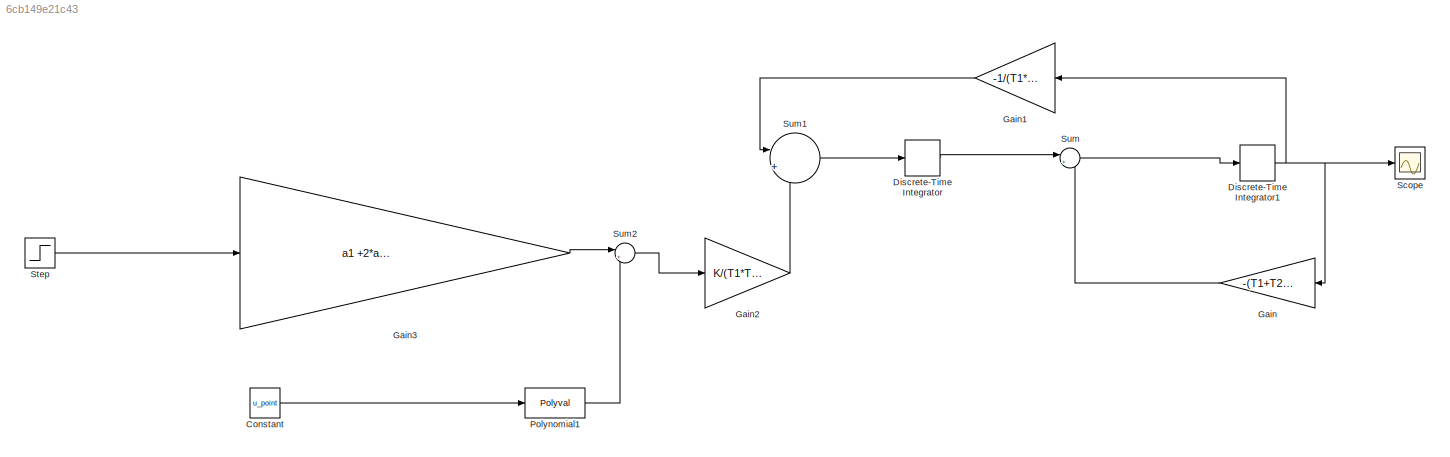
MODEL slx_6cb149e21c43
KIND model
CONFIG AbsTol = auto
CONFIG EnableMultiTasking = off
CONFIG FixedStep = auto
CONFIG MaxStep = auto
CONFIG MinStep = auto
CONFIG RelTol = 1e-3
CONFIG SampleTimeConstraint = Unconstrained
CONFIG SolverName = VariableStepAuto
CONFIG StartTime = 0.0
CONFIG StopTime = 100
WORKSPACE source: mxarray member
WORKSPACE T1: Simulink.Parameter (value not decoded)
WORKSPACE T2: Simulink.Parameter (value not decoded)
BLOCK [Constant] Constant
  Value = u_point
BLOCK [DiscreteIntegrator] Discrete-Time Integrator
  ICPrevOutput = DiscIntNeverNeededParam
  ICPrevScaledInput = DiscIntNeverNeededParam
  InitialConditionSetting = Auto
  SampleTime = -1
BLOCK [DiscreteIntegrator] Discrete-Time Integrator1
  ICPrevOutput = DiscIntNeverNeededParam
  ICPrevScaledInput = DiscIntNeverNeededParam
  InitialConditionSetting = Auto
  SampleTime = -1
BLOCK [Gain] Gain
  Gain = -(T1+T2)/(T1*T2)
  NameLocation = top
BLOCK [Gain] Gain1
  Gain = -1/(T1*T2)
  NameLocation = top
BLOCK [Gain] Gain2
  Gain = K/(T1*T2)
BLOCK [Gain] Gain3
  Gain = a1 +2*a2*2*u_point+ a3*3*u_point.^2+ a4*4*u_point.^3
BLOCK [Polyval] Polynomial1
  Coefs = [-3*a4, -2*a3, - a2,0,0]
BLOCK [Scope] Scope
  Floating = off
  NumInputPorts = 1
  ScopeSpecificationString = Simulink.scopes.TimeScopeBlockCfg('CurrentConfiguration', extmgr.ConfigurationSet(extmgr.Configuration('Core','General UI',true),extmgr.Configuration('Core','Source UI',true),extmgr.Configuration('Sources','WiredSimulink',true),extmgr.Configuration('Visuals','Time Domain',true,'SerializedDisplays',{struct('MinYLimReal','-0.89997','MaxYLimReal','0.1','YLabelReal','','MinYLimMag','0.00000','MaxYLimM...<+1337ch>
BLOCK [Step] Step
  SampleTime = 0
BLOCK [Sum] Sum
  Inputs = |++
BLOCK [Sum] Sum1
  Inputs = |++
BLOCK [Sum] Sum2
  Inputs = |++
LINE Constant:1 -> Polynomial1:1
NET Discrete-Time Integrator1:1 -> Gain1:1, Gain:1, Scope:1
LINE Discrete-Time Integrator:1 -> Sum:1
LINE Gain1:1 -> Sum1:1
LINE Gain2:1 -> Sum1:2
LINE Gain3:1 -> Sum2:1
LINE Gain:1 -> Sum:2
LINE Polynomial1:1 -> Sum2:2
LINE Step:1 -> Gain3:1
LINE Sum1:1 -> Discrete-Time Integrator:1
LINE Sum2:1 -> Gain2:1
LINE Sum:1 -> Discrete-Time Integrator1:1
note: NET lines group one-source signal fan-out (src -> all destinations, sorted); 1:1 wires keep LINE
